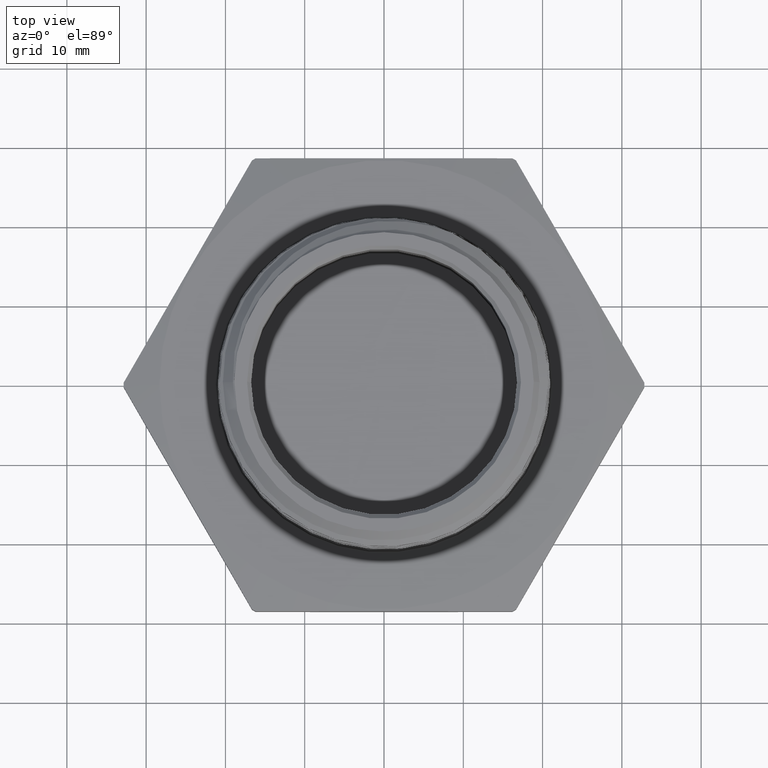
[diagram: clean part render]
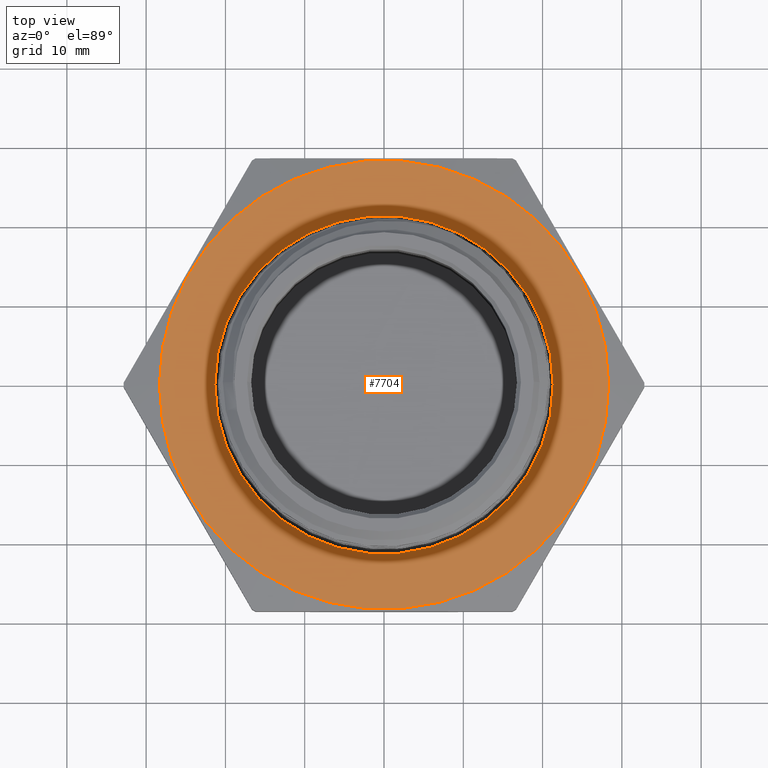
[diagram: same view with one face highlighted and labeled with its STEP entity id]
A machine part, top view. The second image highlights one B-rep face of the part: STEP entity #7704.
In plain terms, the highlighted planar face has unit normal (-0, 0, 1).
Its self-contained STEP definition (entity closure, byte-faithful):
#4 = ORIENTED_EDGE ( 'NONE', *, *, #30, .F. ) ;
#5 = ORIENTED_EDGE ( 'NONE', *, *, #146, .T. ) ;
#9 = ORIENTED_EDGE ( 'NONE', *, *, #125, .F. ) ;
#29 = EDGE_CURVE ( 'NONE', #280, #284, #523, .T. ) ;
#30 = EDGE_CURVE ( 'NONE', #295, #275, #520, .T. ) ;
#125 = EDGE_CURVE ( 'NONE', #275, #295, #3207, .T. ) ;
#146 = EDGE_CURVE ( 'NONE', #284, #280, #3230, .T. ) ;
#173 = AXIS2_PLACEMENT_3D ( 'NONE', #7628, #7627, #7626 ) ;
#174 = AXIS2_PLACEMENT_3D ( 'NONE', #7623, #7621, #7620 ) ;
#194 = AXIS2_PLACEMENT_3D ( 'NONE', #893, #894, #895 ) ;
#208 = AXIS2_PLACEMENT_3D ( 'NONE', #971, #972, #973 ) ;
#275 = VERTEX_POINT ( 'NONE', #5710 ) ;
#280 = VERTEX_POINT ( 'NONE', #5690 ) ;
#284 = VERTEX_POINT ( 'NONE', #5716 ) ;
#295 = VERTEX_POINT ( 'NONE', #5727 ) ;
#412 = EDGE_LOOP ( 'NONE', ( #5, #3505 ) ) ;
#413 = EDGE_LOOP ( 'NONE', ( #9, #4 ) ) ;
#520 = CIRCLE ( 'NONE', #174, 1.115000000000000200 ) ;
#523 = CIRCLE ( 'NONE', #173, 0.8400000000000001900 ) ;
#893 = CARTESIAN_POINT ( 'NONE',  ( 3.011967715085720700E-017, 0.0000000000000000000, 0.2399999999999998500 ) ) ;
#894 = DIRECTION ( 'NONE',  ( -1.254986547952384500E-016, -0.0000000000000000000, -1.000000000000000000 ) ) ;
#895 = DIRECTION ( 'NONE',  ( -1.000000000000000000, 0.0000000000000000000, 1.225043943347203100E-016 ) ) ;
#971 = CARTESIAN_POINT ( 'NONE',  ( 0.0000000000000000000, 0.0000000000000000000, 0.2399999999999999900 ) ) ;
#972 = DIRECTION ( 'NONE',  ( 0.0000000000000000000, -0.0000000000000000000, -1.000000000000000000 ) ) ;
#973 = DIRECTION ( 'NONE',  ( 1.000000000000000000, 0.0000000000000000000, 0.0000000000000000000 ) ) ;
#3207 = CIRCLE ( 'NONE', #194, 1.115000000000000200 ) ;
#3230 = CIRCLE ( 'NONE', #208, 0.8400000000000001900 ) ;
#3378 = FACE_OUTER_BOUND ( 'NONE', #413, .T. ) ;
#3380 = FACE_BOUND ( 'NONE', #412, .T. ) ;
#3505 = ORIENTED_EDGE ( 'NONE', *, *, #29, .T. ) ;
#4920 = DIRECTION ( 'NONE',  ( -0.0000000000000000000, 0.0000000000000000000, 1.000000000000000000 ) ) ;
#4921 = CARTESIAN_POINT ( 'NONE',  ( -0.6495190528383287800, -1.124999999999999800, 0.2399999999999999900 ) ) ;
#4923 = PLANE ( 'NONE',  #7325 ) ;
#4925 = DIRECTION ( 'NONE',  ( 1.000000000000000000, 0.0000000000000000000, 0.0000000000000000000 ) ) ;
#5690 = CARTESIAN_POINT ( 'NONE',  ( -0.8400000000000001900, 1.028703311283777000E-016, 0.2399999999999999600 ) ) ;
#5710 = CARTESIAN_POINT ( 'NONE',  ( -1.115000000000000200, 0.0000000000000000000, 0.2399999999999999900 ) ) ;
#5716 = CARTESIAN_POINT ( 'NONE',  ( 0.8400000000000001900, 0.0000000000000000000, 0.2399999999999999600 ) ) ;
#5727 = CARTESIAN_POINT ( 'NONE',  ( 1.115000000000000200, 1.365481181049299100E-016, 0.2399999999999997400 ) ) ;
#7325 = AXIS2_PLACEMENT_3D ( 'NONE', #4921, #4920, #4925 ) ;
#7620 = DIRECTION ( 'NONE',  ( -1.000000000000000000, 0.0000000000000000000, 1.225043943347203100E-016 ) ) ;
#7621 = DIRECTION ( 'NONE',  ( -1.254986547952384500E-016, -0.0000000000000000000, -1.000000000000000000 ) ) ;
#7623 = CARTESIAN_POINT ( 'NONE',  ( 3.011967715085720700E-017, 0.0000000000000000000, 0.2399999999999998500 ) ) ;
#7626 = DIRECTION ( 'NONE',  ( 1.000000000000000000, 0.0000000000000000000, 0.0000000000000000000 ) ) ;
#7627 = DIRECTION ( 'NONE',  ( 0.0000000000000000000, -0.0000000000000000000, -1.000000000000000000 ) ) ;
#7628 = CARTESIAN_POINT ( 'NONE',  ( 0.0000000000000000000, 0.0000000000000000000, 0.2399999999999999900 ) ) ;
#7704 = ADVANCED_FACE ( 'NONE', ( #3378, #3380 ), #4923, .T. ) ;